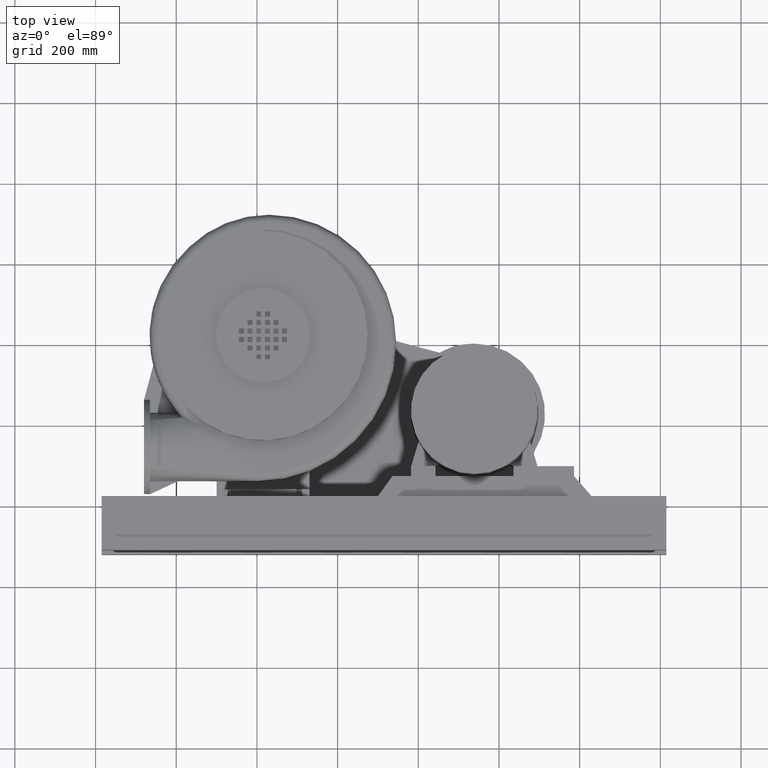
[diagram: clean part render]
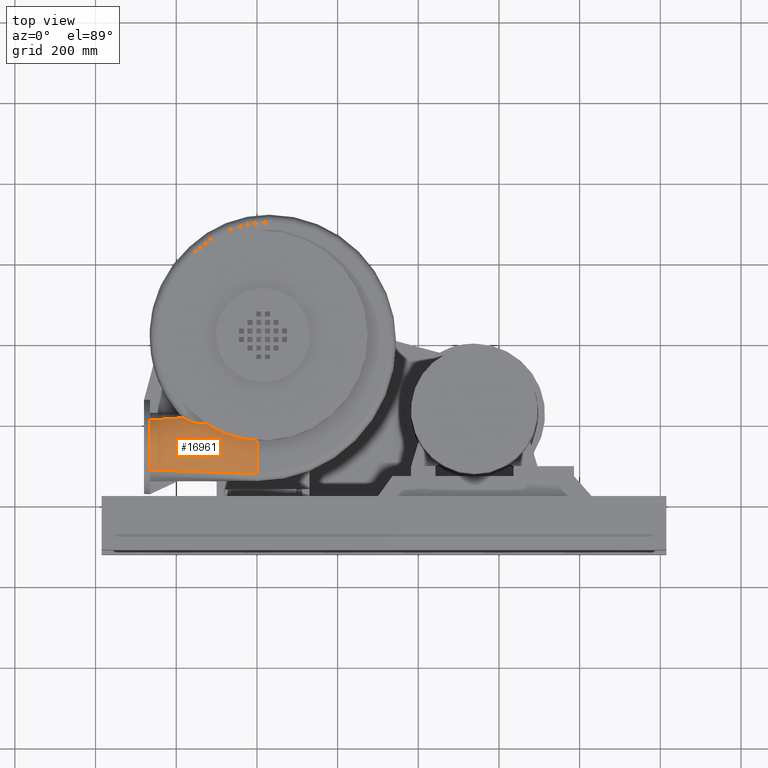
[diagram: same view with one face highlighted and labeled with its STEP entity id]
A machine part, top view. The second image highlights one B-rep face of the part: STEP entity #16961.
In plain terms, the highlighted face is a freeform B-spline surface patch.
Its self-contained STEP definition (entity closure, byte-faithful):
#16138=CARTESIAN_POINT('',(9.372842E-014,-327.000000000000170,67.500000000000043));
#16139=VERTEX_POINT('',#16138);
#16260=CARTESIAN_POINT('',(-182.295181745916240,-188.168946625750380,58.033999099305682));
#16261=VERTEX_POINT('',#16260);
#16262=CARTESIAN_POINT('',(-142.587203799283170,-202.939572094525200,67.500000000000014));
#16263=VERTEX_POINT('',#16262);
#16264=CARTESIAN_POINT('',(-182.295181745916210,-188.168946625750350,58.033999099305689));
#16265=CARTESIAN_POINT('',(-178.391765953293290,-190.625006321560700,60.117544963931415));
#16266=CARTESIAN_POINT('',(-174.075417422744070,-192.926782232564160,61.786340181777987));
#16267=CARTESIAN_POINT('',(-169.743996775455090,-194.953930814489350,63.101210290616010));
#16268=CARTESIAN_POINT('',(-167.172796429805230,-196.157278528545250,63.881738148247429));
#16269=CARTESIAN_POINT('',(-164.595843078734620,-197.262734320818140,64.538042660584324));
#16270=CARTESIAN_POINT('',(-162.094994875739080,-198.240646300894670,65.085377927693543));
#16271=CARTESIAN_POINT('',(-160.985984640648980,-198.674304926645360,65.328095743402159));
#16272=CARTESIAN_POINT('',(-159.891939649917420,-199.082867540970740,65.549395531808173));
#16273=CARTESIAN_POINT('',(-158.820025584354480,-199.463778734955240,65.750614219195981));
#16274=CARTESIAN_POINT('',(-157.915558881548550,-199.785186488387520,65.920399847140899));
#16275=CARTESIAN_POINT('',(-157.025056794732990,-200.087661465043940,66.076305473357024));
#16276=CARTESIAN_POINT('',(-156.142501497250460,-200.372556768667070,66.220434559087735));
#16277=CARTESIAN_POINT('',(-153.596781151938870,-201.194333911454550,66.636173206787689));
#16278=CARTESIAN_POINT('',(-151.142129401926840,-201.860921677716700,66.949143220653013));
#16279=CARTESIAN_POINT('',(-148.893194143856620,-202.310800582262460,67.161875846809778));
#16280=CARTESIAN_POINT('',(-147.768726514821510,-202.535740034535340,67.268242159888160));
#16281=CARTESIAN_POINT('',(-146.695675484822660,-202.706460237290540,67.349550223554644));
#16282=CARTESIAN_POINT('',(-145.688365856224890,-202.815347297345280,67.405800034306992));
#16283=CARTESIAN_POINT('',(-145.394934234212630,-202.847066349502540,67.422185734133890));
#16284=CARTESIAN_POINT('',(-145.098006415668690,-202.874553063668120,67.436959053772043));
#16285=CARTESIAN_POINT('',(-144.797305730283430,-202.896657199584690,67.449756420112891));
#16286=CARTESIAN_POINT('',(-144.065743111402670,-202.950433463973720,67.480890618636892));
#16287=CARTESIAN_POINT('',(-143.317155042195590,-202.971775334284360,67.500000000000014));
#16288=CARTESIAN_POINT('',(-142.587203799283170,-202.939572094525260,67.500000000000014));
#16289=B_SPLINE_CURVE_WITH_KNOTS('',3,(#16264,#16265,#16266,#16267,#16268,#16269,#16270,#16271,#16272,#16273,#16274,#16275,#16276,#16277,#16278,#16279,#16280,#16281,#16282,#16283,#16284,#16285,#16286,#16287,#16288),.UNSPECIFIED.,.F.,.U.,(4,3,3,3,3,3,3,3,4),(0.0,1.518191117894360,2.419413567747097,2.819063942281024,3.156283564770096,4.128989588129178,4.615342599808719,4.757018355739239,5.101695611488260),.UNSPECIFIED.);
#16290=EDGE_CURVE('',#16261,#16263,#16289,.T.);
#16615=CARTESIAN_POINT('',(-264.999999999999940,-317.967041148016510,62.167693704561572));
#16616=VERTEX_POINT('',#16615);
#16617=CARTESIAN_POINT('',(9.372842E-014,-327.000000000000170,67.500000000000028));
#16618=CARTESIAN_POINT('',(-88.333333333333229,-323.989013716005620,65.722564568187209));
#16619=CARTESIAN_POINT('',(-176.666666666666630,-320.978027432011000,63.945129136374398));
#16620=CARTESIAN_POINT('',(-264.999999999999940,-317.967041148016450,62.167693704561586));
#16621=QUASI_UNIFORM_CURVE('',3,(#16617,#16618,#16619,#16620),.UNSPECIFIED.,.F.,.U.);
#16622=EDGE_CURVE('',#16139,#16616,#16621,.T.);
#16836=CARTESIAN_POINT('',(9.372842E-014,-327.000000000000170,67.500000000000028));
#16837=CARTESIAN_POINT('',(9.300011E-014,-319.761904761904930,67.500000000000028));
#16838=CARTESIAN_POINT('',(9.154348E-014,-305.285714285714450,67.500000000000014));
#16839=CARTESIAN_POINT('',(8.935854E-014,-283.571428571428730,67.500000000000014));
#16840=CARTESIAN_POINT('',(8.717360E-014,-261.857142857143170,67.500000000000028));
#16841=CARTESIAN_POINT('',(8.498866E-014,-240.142857142857310,67.500000000000000));
#16842=CARTESIAN_POINT('',(8.280371E-014,-218.428571428571730,67.500000000000000));
#16843=CARTESIAN_POINT('',(8.061877E-014,-196.714285714285890,67.499999999999972));
#16844=CARTESIAN_POINT('',(7.916214E-014,-182.238095238095380,67.499999999999957));
#16845=CARTESIAN_POINT('',(7.843383E-014,-175.000000000000140,67.499999999999957));
#16846=CARTESIAN_POINT('',(-88.333333333333243,-323.989013716005620,65.722564568187209));
#16847=CARTESIAN_POINT('',(-88.333333333333286,-317.548621736694430,67.228804336708805));
#16848=CARTESIAN_POINT('',(-88.333333333333201,-304.313553017960770,69.861273034042796));
#16849=CARTESIAN_POINT('',(-88.333333333333243,-283.692591906521900,72.457221669277899));
#16850=CARTESIAN_POINT('',(-88.333333333333314,-262.637229472113180,73.558580988952500));
#16851=CARTESIAN_POINT('',(-88.333333333333201,-241.505810474208740,73.105563399967139));
#16852=CARTESIAN_POINT('',(-88.333333333333357,-220.660397079891000,71.122846008831786));
#16853=CARTESIAN_POINT('',(-88.333333333332959,-200.447824726927190,67.718227959665668));
#16854=CARTESIAN_POINT('',(-88.333333333333456,-187.602582705927720,64.624309067348662));
#16855=CARTESIAN_POINT('',(-88.333333333333243,-181.381172232860480,62.913134867930218));
#16856=CARTESIAN_POINT('',(-176.666666666666600,-320.978027432011000,63.945129136374398));
#16857=CARTESIAN_POINT('',(-176.666666666666570,-315.334747117533200,66.957052224402119));
#16858=CARTESIAN_POINT('',(-176.666666666666660,-303.341505175702140,72.222524773293927));
#16859=CARTESIAN_POINT('',(-176.666666666666630,-283.813554363799540,77.414320572324698));
#16860=CARTESIAN_POINT('',(-176.666666666666660,-263.417401366530670,79.616715236159109));
#16861=CARTESIAN_POINT('',(-176.666666666666710,-242.868672537456580,78.711505098005631));
#16862=CARTESIAN_POINT('',(-176.666666666666690,-222.892532557571260,74.745179685540720));
#16863=CARTESIAN_POINT('',(-176.666666666666970,-204.181183740620700,67.936766195756945));
#16864=CARTESIAN_POINT('',(-176.666666666666400,-192.967674657620510,61.748190323109682));
#16865=CARTESIAN_POINT('',(-176.666666666666630,-187.762344465720790,58.326269735860478));
#16866=CARTESIAN_POINT('',(-264.999999999999940,-317.967041148016450,62.167693704561586));
#16867=CARTESIAN_POINT('',(-264.999999999999940,-313.121464092322700,66.685856561110896));
#16868=CARTESIAN_POINT('',(-264.999999999999940,-302.369343907948460,74.583797807336708));
#16869=CARTESIAN_POINT('',(-264.999999999999940,-283.934717698892710,82.371542241602583));
#16870=CARTESIAN_POINT('',(-265.000000000000060,-264.197487981500670,85.675296225111580));
#16871=CARTESIAN_POINT('',(-265.0,-244.231625868808010,84.317068497972770));
#16872=CARTESIAN_POINT('',(-265.000000000000110,-225.124358208890530,78.368025694372506));
#16873=CARTESIAN_POINT('',(-265.0,-207.914722753262000,68.154994155422642));
#16874=CARTESIAN_POINT('',(-264.999999999999940,-198.332162125452840,58.872499390458387));
#16875=CARTESIAN_POINT('',(-264.999999999999940,-194.143516698581120,53.739404603790739));
#16876=B_SPLINE_SURFACE_WITH_KNOTS('',3,3,((#16836,#16846,#16856,#16866),(#16837,#16847,#16857,#16867),(#16838,#16848,#16858,#16868),(#16839,#16849,#16859,#16869),(#16840,#16850,#16860,#16870),(#16841,#16851,#16861,#16871),(#16842,#16852,#16862,#16872),(#16843,#16853,#16863,#16873),(#16844,#16854,#16864,#16874),(#16845,#16855,#16865,#16875)),.UNSPECIFIED.,.F.,.F.,.U.,(4,1,1,1,1,1,1,4),(4,4),(0.0,0.142857142857143,0.285714285714286,0.428571428571429,0.571428571428571,0.714285714285714,0.857142857142857,1.0),(0.0,1.0),.UNSPECIFIED.);
#16877=CARTESIAN_POINT('',(8.607027E-014,-244.566947048348340,67.500000000000028));
#16878=VERTEX_POINT('',#16877);
#16879=CARTESIAN_POINT('',(-127.781724143644540,-202.286399138483200,67.499999999999986));
#16880=VERTEX_POINT('',#16879);
#16881=CARTESIAN_POINT('',(8.437695E-014,-244.566947048348340,67.500000000000000));
#16882=CARTESIAN_POINT('',(-10.975895536418701,-243.932665854542820,68.191722262366014));
#16883=CARTESIAN_POINT('',(-21.886070846778182,-242.603528796476300,68.870687038676678));
#16884=CARTESIAN_POINT('',(-32.662077911183360,-240.594065520286190,69.476915780913913));
#16885=CARTESIAN_POINT('',(-37.252520465495373,-239.738059610191750,69.735161548514142));
#16886=CARTESIAN_POINT('',(-41.818669545459372,-238.758615893033830,69.979613964297741));
#16887=CARTESIAN_POINT('',(-46.355470032207002,-237.656894418353490,70.201992949494226));
#16888=CARTESIAN_POINT('',(-48.767361435614674,-237.071188134488210,70.320215905134589));
#16889=CARTESIAN_POINT('',(-51.170960404403765,-236.450922545324320,70.432154306277965));
#16890=CARTESIAN_POINT('',(-53.565513243397390,-235.796272686955150,70.536208313581653));
#16891=CARTESIAN_POINT('',(-55.242660196848611,-235.337755339723600,70.609087833507857));
#16892=CARTESIAN_POINT('',(-56.913625108611470,-234.862767494639260,70.677998859547742));
#16893=CARTESIAN_POINT('',(-58.567139704756492,-234.374970587789560,70.741966773803981));
#16894=CARTESIAN_POINT('',(-70.526661196989949,-230.846838689277940,71.204633173692088));
#16895=CARTESIAN_POINT('',(-81.734963175161269,-226.605850997944570,71.420806735860111));
#16896=CARTESIAN_POINT('',(-92.164655257109501,-221.887603440165120,71.170694232498363));
#16897=CARTESIAN_POINT('',(-96.774236837167052,-219.802292880504870,71.060152715128567));
#16898=CARTESIAN_POINT('',(-101.231745170879350,-217.623659469720310,70.857771362905709));
#16899=CARTESIAN_POINT('',(-105.534826628780040,-215.372210931722380,70.542231386161447));
#16900=CARTESIAN_POINT('',(-107.920197110247030,-214.124142789014630,70.367314933007492));
#16901=CARTESIAN_POINT('',(-110.258112660759180,-212.853706802115940,70.157611910407311));
#16902=CARTESIAN_POINT('',(-112.548174410184390,-211.564479132606380,69.909448181456199));
#16903=CARTESIAN_POINT('',(-114.895111941128970,-210.243232312836710,69.655121078948710));
#16904=CARTESIAN_POINT('',(-117.184177362255230,-208.906495083476840,69.361153331667779));
#16905=CARTESIAN_POINT('',(-119.412300712976390,-207.560853289711390,69.025185948914938));
#16906=CARTESIAN_POINT('',(-122.300562500266320,-205.816530754311770,68.589679650277205));
#16907=CARTESIAN_POINT('',(-125.089082083886910,-204.055769321422530,68.083313684525635));
#16908=CARTESIAN_POINT('',(-127.781724143644500,-202.286399138483200,67.499999999999773));
#16909=B_SPLINE_CURVE_WITH_KNOTS('',3,(#16881,#16882,#16883,#16884,#16885,#16886,#16887,#16888,#16889,#16890,#16891,#16892,#16893,#16894,#16895,#16896,#16897,#16898,#16899,#16900,#16901,#16902,#16903,#16904,#16905,#16906,#16907,#16908),.UNSPECIFIED.,.F.,.U.,(4,3,3,3,3,3,3,3,3,4),(-13.311456556822131,-10.918320330472332,-9.898874602008700,-9.356908430936279,-8.977314839228464,-6.231794643079226,-5.018364829005418,-4.345712059555929,-3.656353342346202,-2.762754502763271),.UNSPECIFIED.);
#16910=EDGE_CURVE('',#16878,#16880,#16909,.T.);
#16911=ORIENTED_EDGE('',*,*,#16910,.T.);
#16912=CARTESIAN_POINT('',(-142.587203799283170,-202.939572094525200,67.500000000000014));
#16913=CARTESIAN_POINT('',(-137.652043914070280,-202.721847775844480,67.500000000000000));
#16914=CARTESIAN_POINT('',(-132.716884028857410,-202.504123457163810,67.499999999999986));
#16915=CARTESIAN_POINT('',(-127.781724143644540,-202.286399138483200,67.499999999999986));
#16916=B_SPLINE_CURVE_WITH_KNOTS('',3,(#16912,#16913,#16914,#16915),.UNSPECIFIED.,.F.,.U.,(4,4),(10.601581552592375,12.083569618482359),.UNSPECIFIED.);
#16917=EDGE_CURVE('',#16263,#16880,#16916,.T.);
#16918=ORIENTED_EDGE('',*,*,#16917,.F.);
#16919=ORIENTED_EDGE('',*,*,#16290,.F.);
#16920=CARTESIAN_POINT('',(-264.999999999999940,-194.143516698581180,53.739404603790732));
#16921=VERTEX_POINT('',#16920);
#16922=CARTESIAN_POINT('',(-182.295181745916300,-188.168946625750320,58.033999099305703));
#16923=CARTESIAN_POINT('',(-209.863454497277530,-190.160469983360570,56.602467600800708));
#16924=CARTESIAN_POINT('',(-237.431727248638740,-192.151993340970850,55.170936102295727));
#16925=CARTESIAN_POINT('',(-264.999999999999940,-194.143516698581120,53.739404603790739));
#16926=B_SPLINE_CURVE_WITH_KNOTS('',3,(#16922,#16923,#16924,#16925),.UNSPECIFIED.,.F.,.U.,(4,4),(0.687906346211005,1.0),.UNSPECIFIED.);
#16927=EDGE_CURVE('',#16261,#16921,#16926,.T.);
#16928=ORIENTED_EDGE('',*,*,#16927,.T.);
#16929=CARTESIAN_POINT('',(-264.999999999999940,-260.000000000000110,2.970061E-014));
#16930=DIRECTION('',(-1.0,0.0,0.0));
#16931=DIRECTION('',(0.0,0.0,-1.0));
#16932=AXIS2_PLACEMENT_3D('',#16929,#16930,#16931);
#16933=CIRCLE('',#16932,85.0);
#16934=EDGE_CURVE('',#16616,#16921,#16933,.T.);
#16935=ORIENTED_EDGE('',*,*,#16934,.F.);
#16936=ORIENTED_EDGE('',*,*,#16622,.F.);
#16937=CARTESIAN_POINT('',(9.282014E-014,-317.973300117060030,67.500000000000028));
#16938=VERTEX_POINT('',#16937);
#16939=CARTESIAN_POINT('',(9.512579E-014,-327.000000000000170,67.500000000000057));
#16940=DIRECTION('',(0.0,1.0,0.0));
#16941=VECTOR('',#16940,9.026699882940136);
#16942=LINE('',#16939,#16941);
#16943=EDGE_CURVE('',#16139,#16938,#16942,.T.);
#16944=ORIENTED_EDGE('',*,*,#16943,.T.);
#16945=CARTESIAN_POINT('',(8.881784E-014,-261.376554721995380,67.500000000000028));
#16946=VERTEX_POINT('',#16945);
#16947=CARTESIAN_POINT('',(9.421750E-014,-317.973300117060030,67.500000000000043));
#16948=DIRECTION('',(0.0,1.0,0.0));
#16949=VECTOR('',#16948,56.596745395064659);
#16950=LINE('',#16947,#16949);
#16951=EDGE_CURVE('',#16938,#16946,#16950,.T.);
#16952=ORIENTED_EDGE('',*,*,#16951,.T.);
#16953=CARTESIAN_POINT('',(8.678293E-014,-244.566947048348340,67.500000000000028));
#16954=DIRECTION('',(0.0,-1.0,0.0));
#16955=VECTOR('',#16954,16.809607673647037);
#16956=LINE('',#16953,#16955);
#16957=EDGE_CURVE('',#16878,#16946,#16956,.T.);
#16958=ORIENTED_EDGE('',*,*,#16957,.F.);
#16959=EDGE_LOOP('',(#16911,#16918,#16919,#16928,#16935,#16936,#16944,#16952,#16958));
#16960=FACE_OUTER_BOUND('',#16959,.T.);
#16961=ADVANCED_FACE('',(#16960),#16876,.T.);